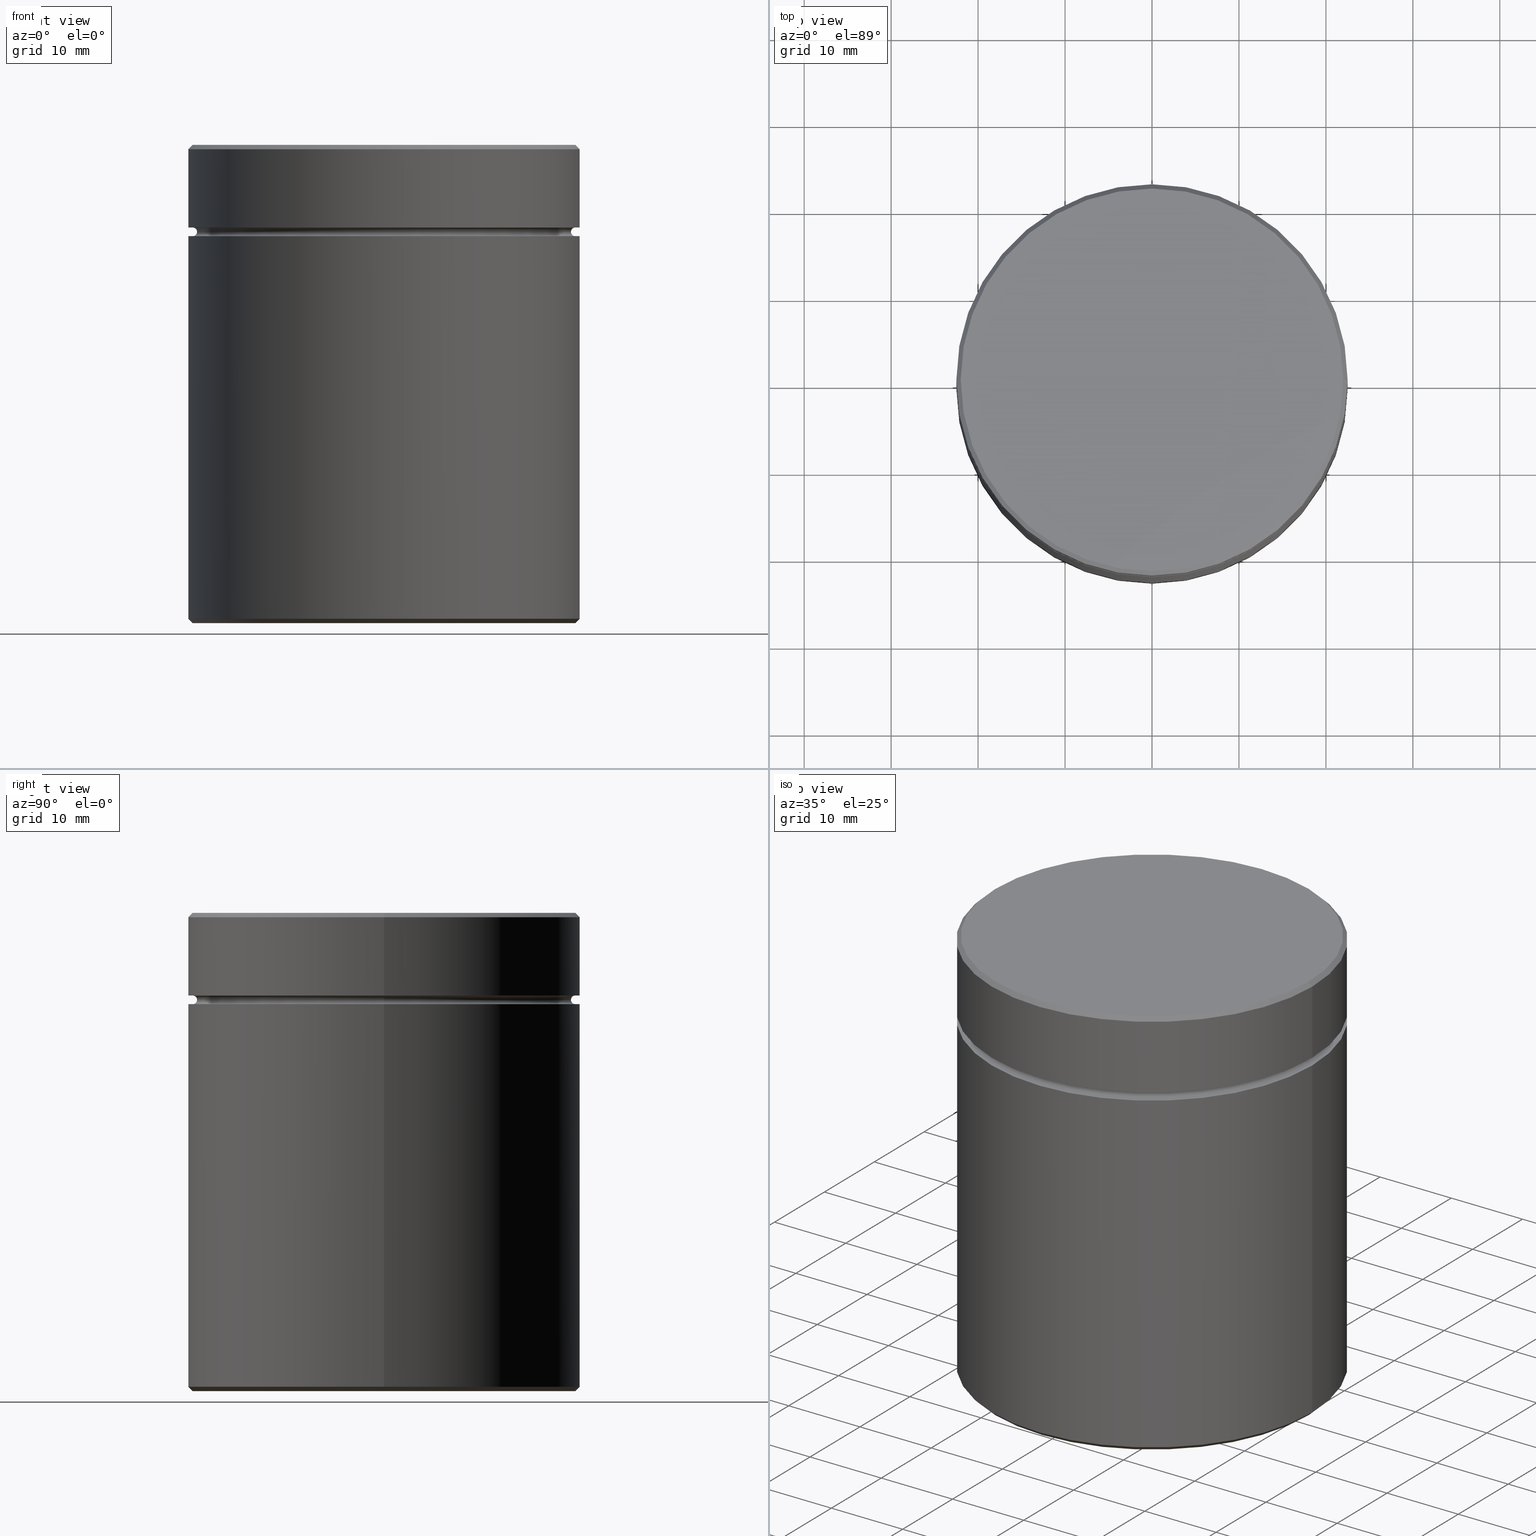
[diagram: canonical four-view strip — front | top / right | iso, engineering-drawing reading convention]
A machine part, canonical four-view strip (front | top / right | iso — engineering-drawing reading convention). The complete STEP part file that produces these views, byte-faithful:
ISO-10303-21;
HEADER;
FILE_DESCRIPTION (( 'STEP AP203' ),
    '1' );
FILE_NAME ('9237.STEP',
    '2024-01-08T12:15:10',
    ( '' ),
    ( '' ),
    'SwSTEP 2.0',
    'SolidWorks 2019',
    '' );
FILE_SCHEMA (( 'CONFIG_CONTROL_DESIGN' ));
ENDSEC;

DATA;
#1 = CARTESIAN_POINT ( 'NONE',  ( 0.000000000000000000, 0.000000000000000000, -18.00000000000000355 ) ) ;
#2 = EDGE_CURVE ( 'NONE', #394, #326, #10, .T. ) ;
#3 = DIRECTION ( 'NONE',  ( 0.000000000000000000, 0.000000000000000000, -1.000000000000000000 ) ) ;
#4 = CARTESIAN_POINT ( 'NONE',  ( 0.000000000000000000, 0.000000000000000000, -10.50000000000000000 ) ) ;
#5 = VECTOR ( 'NONE', #186, 1000.000000000000114 ) ;
#6 = CC_DESIGN_SECURITY_CLASSIFICATION ( #502, ( #63 ) ) ;
#7 = CARTESIAN_POINT ( 'NONE',  ( -22.00000000000000000, 0.000000000000000000, -9.999999999999998224 ) ) ;
#8 = VERTEX_POINT ( 'NONE', #138 ) ;
#9 = FACE_OUTER_BOUND ( 'NONE', #458, .T. ) ;
#10 = CIRCLE ( 'NONE', #49, 22.50000000000000000 ) ;
#11 = EDGE_LOOP ( 'NONE', ( #468, #285 ) ) ;
#12 = CYLINDRICAL_SURFACE ( 'NONE', #272, 22.50000000000000000 ) ;
#13 = EDGE_CURVE ( 'NONE', #95, #340, #178, .T. ) ;
#14 = ORIENTED_EDGE ( 'NONE', *, *, #507, .T. ) ;
#15 = DIRECTION ( 'NONE',  ( 0.000000000000000000, 0.000000000000000000, -1.000000000000000000 ) ) ;
#16 = AXIS2_PLACEMENT_3D ( 'NONE', #459, #404, #548 ) ;
#17 = CIRCLE ( 'NONE', #433, 0.5000000000000004441 ) ;
#18 = DIRECTION ( 'NONE',  ( 0.000000000000000000, -1.000000000000000000, 0.000000000000000000 ) ) ;
#19 = EDGE_CURVE ( 'NONE', #215, #234, #495, .T. ) ;
#20 =( NAMED_UNIT ( * ) SI_UNIT ( $, .STERADIAN. ) SOLID_ANGLE_UNIT ( ) );
#21 = APPROVAL_ROLE ( '' ) ;
#22 = CARTESIAN_POINT ( 'NONE',  ( 0.000000000000000000, 0.000000000000000000, -9.499999999999998224 ) ) ;
#23 = CONICAL_SURFACE ( 'NONE', #53, 22.50000000000000000, 0.7853981633974482790 ) ;
#24 = VERTEX_POINT ( 'NONE', #565 ) ;
#25 = CARTESIAN_POINT ( 'NONE',  ( -21.99999999999998579, 0.000000000000000000, 0.000000000000000000 ) ) ;
#26 = CIRCLE ( 'NONE', #143, 22.50000000000000000 ) ;
#27 = COORDINATED_UNIVERSAL_TIME_OFFSET ( 1, 0, .AHEAD. ) ;
#28 = DIRECTION ( 'NONE',  ( -1.000000000000000000, 0.000000000000000000, 0.000000000000000000 ) ) ;
#29 = ORIENTED_EDGE ( 'NONE', *, *, #19, .T. ) ;
#30 = DATE_TIME_ROLE ( 'classification_date' ) ;
#31 = DIRECTION ( 'NONE',  ( 1.000000000000000000, 0.000000000000000000, 0.000000000000000000 ) ) ;
#32 = EDGE_CURVE ( 'NONE', #24, #326, #135, .T. ) ;
#33 = DIRECTION ( 'NONE',  ( 0.000000000000000000, 0.000000000000000000, -1.000000000000000000 ) ) ;
#34 = DIRECTION ( 'NONE',  ( -0.000000000000000000, -0.000000000000000000, 1.000000000000000000 ) ) ;
#35 = PERSON_AND_ORGANIZATION ( #405, #105 ) ;
#36 = ORIENTED_EDGE ( 'NONE', *, *, #146, .T. ) ;
#37 = CYLINDRICAL_SURFACE ( 'NONE', #541, 22.50000000000000000 ) ;
#38 = CARTESIAN_POINT ( 'NONE',  ( 0.000000000000000000, 0.000000000000000000, 0.000000000000000000 ) ) ;
#39 = CARTESIAN_POINT ( 'NONE',  ( -15.50000000000000000, 0.000000000000000000, -55.00000000000000000 ) ) ;
#40 = EDGE_CURVE ( 'NONE', #394, #8, #288, .T. ) ;
#41 = VERTEX_POINT ( 'NONE', #338 ) ;
#42 = ORIENTED_EDGE ( 'NONE', *, *, #434, .T. ) ;
#43 = AXIS2_PLACEMENT_3D ( 'NONE', #564, #333, #518 ) ;
#44 = CIRCLE ( 'NONE', #445, 15.50000000000000000 ) ;
#45 = LOCAL_TIME ( 13, 15, 10.00000000000000000, #179 ) ;
#46 = ADVANCED_FACE ( 'NONE', ( #557 ), #325, .F. ) ;
#47 = ORIENTED_EDGE ( 'NONE', *, *, #240, .F. ) ;
#48 = DIRECTION ( 'NONE',  ( -1.000000000000000000, 1.224646799147349509E-16, 0.000000000000000000 ) ) ;
#49 = AXIS2_PLACEMENT_3D ( 'NONE', #485, #486, #173 ) ;
#50 = ORIENTED_EDGE ( 'NONE', *, *, #190, .F. ) ;
#51 = DIRECTION ( 'NONE',  ( -0.000000000000000000, -0.000000000000000000, 1.000000000000000000 ) ) ;
#52 = CARTESIAN_POINT ( 'NONE',  ( 22.50000000000000000, 0.000000000000000000, 0.000000000000000000 ) ) ;
#53 = AXIS2_PLACEMENT_3D ( 'NONE', #531, #264, #148 ) ;
#54 = APPROVAL_PERSON_ORGANIZATION ( #503, #249, #277 ) ;
#55 = ORIENTED_EDGE ( 'NONE', *, *, #151, .F. ) ;
#56 = CARTESIAN_POINT ( 'NONE',  ( -22.50000000000000000, 2.755455298081544778E-15, -9.500000000000000000 ) ) ;
#57 = ADVANCED_FACE ( 'NONE', ( #217 ), #37, .T. ) ;
#58 = DIRECTION ( 'NONE',  ( -1.000000000000000000, 0.000000000000000000, -0.000000000000000000 ) ) ;
#59 = DIRECTION ( 'NONE',  ( 0.000000000000000000, 0.000000000000000000, -1.000000000000000000 ) ) ;
#60 = AXIS2_PLACEMENT_3D ( 'NONE', #4, #386, #452 ) ;
#61 = FACE_OUTER_BOUND ( 'NONE', #87, .T. ) ;
#62 = DIRECTION ( 'NONE',  ( 1.000000000000000000, 0.000000000000000000, 0.000000000000000000 ) ) ;
#63 = PRODUCT_DEFINITION_FORMATION_WITH_SPECIFIED_SOURCE ( 'LIBOVOLN�', '', #442, .NOT_KNOWN. ) ;
#64 = DIRECTION ( 'NONE',  ( -1.000000000000000000, 0.000000000000000000, -0.000000000000000000 ) ) ;
#65 = ADVANCED_FACE ( 'NONE', ( #524 ), #300, .T. ) ;
#66 = ORIENTED_EDGE ( 'NONE', *, *, #183, .T. ) ;
#67 = FACE_OUTER_BOUND ( 'NONE', #384, .T. ) ;
#68 = CARTESIAN_POINT ( 'NONE',  ( 21.99999999999998579, 2.694222958124175232E-15, 0.000000000000000000 ) ) ;
#69 = CARTESIAN_POINT ( 'NONE',  ( -22.00000000000000000, 0.000000000000000000, -9.499999999999998224 ) ) ;
#70 = CYLINDRICAL_SURFACE ( 'NONE', #16, 22.50000000000000000 ) ;
#71 = APPLICATION_PROTOCOL_DEFINITION ( 'international standard', 'config_control_design', 1994, #505 ) ;
#72 = EDGE_LOOP ( 'NONE', ( #229, #508, #55, #339 ) ) ;
#73 = SECURITY_CLASSIFICATION_LEVEL ( 'unclassified' ) ;
#74 = AXIS2_PLACEMENT_3D ( 'NONE', #262, #59, #440 ) ;
#75 = DIRECTION ( 'NONE',  ( 1.000000000000000000, 0.000000000000000000, 0.000000000000000000 ) ) ;
#76 = CC_DESIGN_APPROVAL ( #249, ( #291 ) ) ;
#77 = ORIENTED_EDGE ( 'NONE', *, *, #521, .T. ) ;
#78 = EDGE_CURVE ( 'NONE', #234, #467, #97, .T. ) ;
#79 = CC_DESIGN_PERSON_AND_ORGANIZATION_ASSIGNMENT ( #35, #156, ( #63 ) ) ;
#80 = DIRECTION ( 'NONE',  ( -0.000000000000000000, -0.000000000000000000, 1.000000000000000000 ) ) ;
#81 = APPROVAL_STATUS ( 'not_yet_approved' ) ;
#82 = CARTESIAN_POINT ( 'NONE',  ( 0.000000000000000000, 0.000000000000000000, 0.000000000000000000 ) ) ;
#83 = VECTOR ( 'NONE', #283, 1000.000000000000000 ) ;
#84 = ADVANCED_FACE ( 'NONE', ( #210 ), #297, .T. ) ;
#85 = AXIS2_PLACEMENT_3D ( 'NONE', #82, #375, #563 ) ;
#86 = CARTESIAN_POINT ( 'NONE',  ( -22.50000000000000000, 2.755455298081544778E-15, 0.000000000000000000 ) ) ;
#87 = EDGE_LOOP ( 'NONE', ( #298, #216, #501, #187 ) ) ;
#88 = MANIFOLD_SOLID_BREP ( 'Zaoblit1', #420 ) ;
#89 = APPROVAL_ROLE ( '' ) ;
#90 = AXIS2_PLACEMENT_3D ( 'NONE', #22, #121, #28 ) ;
#91 = CARTESIAN_POINT ( 'NONE',  ( 22.00000000000000000, 2.694222958124176809E-15, -9.999999999999998224 ) ) ;
#92 = CARTESIAN_POINT ( 'NONE',  ( 0.000000000000000000, 0.000000000000000000, -10.50000000000000178 ) ) ;
#93 = EDGE_CURVE ( 'NONE', #280, #447, #348, .T. ) ;
#94 = DIRECTION ( 'NONE',  ( 0.000000000000000000, 0.000000000000000000, -1.000000000000000000 ) ) ;
#95 = VERTEX_POINT ( 'NONE', #376 ) ;
#96 = VERTEX_POINT ( 'NONE', #39 ) ;
#97 = CIRCLE ( 'NONE', #407, 0.5000000000000004441 ) ;
#98 = LINE ( 'NONE', #383, #5 ) ;
#99 = ORIENTED_EDGE ( 'NONE', *, *, #40, .F. ) ;
#100 = CARTESIAN_POINT ( 'NONE',  ( 0.000000000000000000, 0.000000000000000000, -18.00000000000000355 ) ) ;
#101 = EDGE_CURVE ( 'NONE', #467, #550, #410, .T. ) ;
#102 = AXIS2_PLACEMENT_3D ( 'NONE', #493, #106, #554 ) ;
#103 = DIRECTION ( 'NONE',  ( 1.000000000000000000, 0.000000000000000000, 0.000000000000000000 ) ) ;
#104 = ORIENTED_EDGE ( 'NONE', *, *, #355, .F. ) ;
#105 = ORGANIZATION ( 'NEUR�EN�', 'NEUR�EN�', '' ) ;
#106 = DIRECTION ( 'NONE',  ( 0.000000000000000000, 0.000000000000000000, -1.000000000000000000 ) ) ;
#107 = CARTESIAN_POINT ( 'NONE',  ( 0.000000000000000000, 0.000000000000000000, -10.50000000000000000 ) ) ;
#108 = CC_DESIGN_PERSON_AND_ORGANIZATION_ASSIGNMENT ( #290, #331, ( #291 ) ) ;
#109 = ORIENTED_EDGE ( 'NONE', *, *, #507, .F. ) ;
#110 = CARTESIAN_POINT ( 'NONE',  ( 21.50000000000000000, 0.000000000000000000, -10.00000000000000178 ) ) ;
#111 = CARTESIAN_POINT ( 'NONE',  ( 0.000000000000000000, 0.000000000000000000, 0.000000000000000000 ) ) ;
#112 = AXIS2_PLACEMENT_3D ( 'NONE', #118, #412, #64 ) ;
#113 = CIRCLE ( 'NONE', #337, 22.50000000000000000 ) ;
#114 = ORIENTED_EDGE ( 'NONE', *, *, #172, .T. ) ;
#115 = LINE ( 'NONE', #25, #399 ) ;
#116 = ORIENTED_EDGE ( 'NONE', *, *, #172, .F. ) ;
#117 = CARTESIAN_POINT ( 'NONE',  ( 0.000000000000000000, 0.000000000000000000, -0.5000000000000212053 ) ) ;
#118 = CARTESIAN_POINT ( 'NONE',  ( 0.000000000000000000, 22.50000000000000000, -55.00000000000000000 ) ) ;
#119 = CALENDAR_DATE ( 2024, 8, 1 ) ;
#120 = APPROVAL_DATE_TIME ( #133, #249 ) ;
#121 = DIRECTION ( 'NONE',  ( -0.000000000000000000, -0.000000000000000000, 1.000000000000000000 ) ) ;
#122 = LINE ( 'NONE', #472, #328 ) ;
#123 = APPROVAL_DATE_TIME ( #198, #537 ) ;
#124 = PERSON_AND_ORGANIZATION_ROLE ( 'design_owner' ) ;
#125 = EDGE_CURVE ( 'NONE', #340, #95, #167, .T. ) ;
#126 = DATE_AND_TIME ( #160, #182 ) ;
#127 = DIRECTION ( 'NONE',  ( -1.000000000000000000, 0.000000000000000000, 0.000000000000000000 ) ) ;
#128 = CIRCLE ( 'NONE', #256, 21.50000000000000000 ) ;
#129 = CARTESIAN_POINT ( 'NONE',  ( 0.000000000000000000, 0.000000000000000000, -18.00000000000000355 ) ) ;
#130 = SHAPE_DEFINITION_REPRESENTATION ( #455, #381 ) ;
#131 = EDGE_LOOP ( 'NONE', ( #248, #320, #435, #196 ) ) ;
#132 = COORDINATED_UNIVERSAL_TIME_OFFSET ( 1, 0, .AHEAD. ) ;
#133 = DATE_AND_TIME ( #323, #562 ) ;
#134 = EDGE_CURVE ( 'NONE', #350, #304, #528, .T. ) ;
#135 = LINE ( 'NONE', #367, #357 ) ;
#136 = CIRCLE ( 'NONE', #243, 0.5000000000000004441 ) ;
#137 = ORIENTED_EDGE ( 'NONE', *, *, #426, .F. ) ;
#138 = CARTESIAN_POINT ( 'NONE',  ( -22.50000000000000000, 2.755455298081544778E-15, -10.50000000000000000 ) ) ;
#139 = EDGE_LOOP ( 'NONE', ( #465, #219 ) ) ;
#140 = CC_DESIGN_PERSON_AND_ORGANIZATION_ASSIGNMENT ( #413, #124, ( #442 ) ) ;
#141 = DIRECTION ( 'NONE',  ( -1.000000000000000000, 0.000000000000000000, 0.000000000000000000 ) ) ;
#142 = AXIS2_PLACEMENT_3D ( 'NONE', #259, #185, #393 ) ;
#143 = AXIS2_PLACEMENT_3D ( 'NONE', #107, #387, #345 ) ;
#144 = DIRECTION ( 'NONE',  ( 1.000000000000000000, 0.000000000000000000, 0.000000000000000000 ) ) ;
#145 = DIRECTION ( 'NONE',  ( 1.000000000000000000, 0.000000000000000000, 0.000000000000000000 ) ) ;
#146 = EDGE_CURVE ( 'NONE', #424, #350, #432, .T. ) ;
#147 = DIRECTION ( 'NONE',  ( -0.000000000000000000, -0.000000000000000000, 1.000000000000000000 ) ) ;
#148 = DIRECTION ( 'NONE',  ( 1.000000000000000000, 0.000000000000000000, 0.000000000000000000 ) ) ;
#149 = AXIS2_PLACEMENT_3D ( 'NONE', #365, #154, #419 ) ;
#150 = DIRECTION ( 'NONE',  ( -0.000000000000000000, -0.000000000000000000, 1.000000000000000000 ) ) ;
#151 = EDGE_CURVE ( 'NONE', #392, #8, #299, .T. ) ;
#152 = DIRECTION ( 'NONE',  ( 1.224646799147353207E-16, 1.000000000000000000, 0.000000000000000000 ) ) ;
#153 = CARTESIAN_POINT ( 'NONE',  ( 22.50000000000000000, 0.000000000000000000, -54.49999999999999289 ) ) ;
#154 = DIRECTION ( 'NONE',  ( 0.000000000000000000, -0.000000000000000000, 1.000000000000000000 ) ) ;
#155 = CC_DESIGN_DATE_AND_TIME_ASSIGNMENT ( #418, #30, ( #502 ) ) ;
#156 = PERSON_AND_ORGANIZATION_ROLE ( 'design_supplier' ) ;
#157 = DIRECTION ( 'NONE',  ( -0.000000000000000000, -0.000000000000000000, 1.000000000000000000 ) ) ;
#158 = FACE_OUTER_BOUND ( 'NONE', #139, .T. ) ;
#159 = ORIENTED_EDGE ( 'NONE', *, *, #204, .T. ) ;
#160 = CALENDAR_DATE ( 2024, 8, 1 ) ;
#161 = CARTESIAN_POINT ( 'NONE',  ( 0.000000000000000000, 0.000000000000000000, -18.00000000000000355 ) ) ;
#162 = EDGE_CURVE ( 'NONE', #424, #192, #391, .T. ) ;
#163 = ORIENTED_EDGE ( 'NONE', *, *, #134, .T. ) ;
#164 = ORIENTED_EDGE ( 'NONE', *, *, #151, .T. ) ;
#165 = UNCERTAINTY_MEASURE_WITH_UNIT (LENGTH_MEASURE( 1.000000000000000082E-05 ), #511, 'distance_accuracy_value', 'NONE');
#166 = CARTESIAN_POINT ( 'NONE',  ( 0.000000000000000000, 0.000000000000000000, -10.00000000000000178 ) ) ;
#167 = CIRCLE ( 'NONE', #335, 21.99999999999998579 ) ;
#168 = DIRECTION ( 'NONE',  ( -1.000000000000000000, 0.000000000000000000, 0.000000000000000000 ) ) ;
#169 = AXIS2_PLACEMENT_3D ( 'NONE', #448, #51, #103 ) ;
#170 = CIRCLE ( 'NONE', #428, 22.50000000000000000 ) ;
#171 = MECHANICAL_CONTEXT ( 'NONE', #505, 'mechanical' ) ;
#172 = EDGE_CURVE ( 'NONE', #215, #550, #456, .T. ) ;
#173 = DIRECTION ( 'NONE',  ( -1.000000000000000000, 0.000000000000000000, 0.000000000000000000 ) ) ;
#174 = CARTESIAN_POINT ( 'NONE',  ( 0.000000000000000000, 0.000000000000000000, -18.00000000000000355 ) ) ;
#175 = ADVANCED_FACE ( 'NONE', ( #9 ), #180, .T. ) ;
#176 = ORIENTED_EDGE ( 'NONE', *, *, #125, .F. ) ;
#177 = ORIENTED_EDGE ( 'NONE', *, *, #183, .F. ) ;
#178 = CIRCLE ( 'NONE', #228, 21.99999999999998579 ) ;
#179 = COORDINATED_UNIVERSAL_TIME_OFFSET ( 1, 0, .AHEAD. ) ;
#180 = PLANE ( 'NONE',  #525 ) ;
#181 = CIRCLE ( 'NONE', #561, 22.00000000000000000 ) ;
#182 = LOCAL_TIME ( 13, 15, 10.00000000000000000, #132 ) ;
#183 = EDGE_CURVE ( 'NONE', #347, #394, #98, .T. ) ;
#184 = DIRECTION ( 'NONE',  ( 0.000000000000000000, 0.000000000000000000, -1.000000000000000000 ) ) ;
#185 = DIRECTION ( 'NONE',  ( -0.000000000000000000, -0.000000000000000000, 1.000000000000000000 ) ) ;
#186 = DIRECTION ( 'NONE',  ( -0.7071067811865474617, 8.659560562354932858E-17, 0.7071067811865474617 ) ) ;
#187 = ORIENTED_EDGE ( 'NONE', *, *, #134, .F. ) ;
#188 = CONICAL_SURFACE ( 'NONE', #519, 22.50000000000000000, 0.7853981633974482790 ) ;
#189 = CIRCLE ( 'NONE', #460, 22.50000000000000000 ) ;
#190 = EDGE_CURVE ( 'NONE', #24, #347, #225, .T. ) ;
#191 = DIRECTION ( 'NONE',  ( 1.000000000000000000, 0.000000000000000000, 0.000000000000000000 ) ) ;
#192 = VERTEX_POINT ( 'NONE', #263 ) ;
#193 = DIRECTION ( 'NONE',  ( 0.000000000000000000, 0.000000000000000000, -1.000000000000000000 ) ) ;
#194 = ADVANCED_FACE ( 'NONE', ( #388 ), #244, .F. ) ;
#195 =( GEOMETRIC_REPRESENTATION_CONTEXT ( 3 ) GLOBAL_UNCERTAINTY_ASSIGNED_CONTEXT ( ( #165 ) ) GLOBAL_UNIT_ASSIGNED_CONTEXT ( ( #511, #369, #20 ) ) REPRESENTATION_CONTEXT ( 'NONE', 'WORKASPACE' ) );
#196 = ORIENTED_EDGE ( 'NONE', *, *, #566, .F. ) ;
#197 = DIRECTION ( 'NONE',  ( 0.000000000000000000, 0.000000000000000000, -1.000000000000000000 ) ) ;
#198 = DATE_AND_TIME ( #119, #45 ) ;
#199 = EDGE_LOOP ( 'NONE', ( #164, #360 ) ) ;
#200 = CALENDAR_DATE ( 2024, 8, 1 ) ;
#201 = DIRECTION ( 'NONE',  ( 1.000000000000000000, 0.000000000000000000, 0.000000000000000000 ) ) ;
#202 = ORIENTED_EDGE ( 'NONE', *, *, #526, .F. ) ;
#203 = CARTESIAN_POINT ( 'NONE',  ( 0.000000000000000000, 0.000000000000000000, -54.49999999999999289 ) ) ;
#204 = EDGE_CURVE ( 'NONE', #447, #280, #44, .T. ) ;
#205 = ORIENTED_EDGE ( 'NONE', *, *, #416, .F. ) ;
#206 = AXIS2_PLACEMENT_3D ( 'NONE', #449, #441, #141 ) ;
#207 = CONICAL_SURFACE ( 'NONE', #474, 21.99999999999998579, 0.7853981633974415066 ) ;
#208 = DIRECTION ( 'NONE',  ( 1.000000000000000000, 0.000000000000000000, 0.000000000000000000 ) ) ;
#209 = VECTOR ( 'NONE', #253, 1000.000000000000000 ) ;
#210 = FACE_OUTER_BOUND ( 'NONE', #427, .T. ) ;
#211 = CARTESIAN_POINT ( 'NONE',  ( 21.99999999999998579, 2.724839128102860202E-15, 0.000000000000000000 ) ) ;
#212 = DIRECTION ( 'NONE',  ( -1.000000000000000000, -1.224646799147349509E-16, 0.000000000000000000 ) ) ;
#213 = ADVANCED_FACE ( 'NONE', ( #529 ), #23, .T. ) ;
#214 = CC_DESIGN_APPROVAL ( #484, ( #63 ) ) ;
#215 = VERTEX_POINT ( 'NONE', #342 ) ;
#216 = ORIENTED_EDGE ( 'NONE', *, *, #162, .T. ) ;
#217 = FACE_OUTER_BOUND ( 'NONE', #555, .T. ) ;
#218 = DIRECTION ( 'NONE',  ( -0.000000000000000000, -1.000000000000000000, -0.000000000000000000 ) ) ;
#219 = ORIENTED_EDGE ( 'NONE', *, *, #307, .T. ) ;
#220 = DIRECTION ( 'NONE',  ( 0.000000000000000000, 0.000000000000000000, -1.000000000000000000 ) ) ;
#221 = LINE ( 'NONE', #223, #489 ) ;
#222 = ADVANCED_FACE ( 'NONE', ( #523, #535 ), #306, .T. ) ;
#223 = CARTESIAN_POINT ( 'NONE',  ( 15.50000000000000000, 1.898202538678397557E-15, -18.00000000000000355 ) ) ;
#224 = CARTESIAN_POINT ( 'NONE',  ( -22.50000000000000000, 2.755455298081544778E-15, 0.000000000000000000 ) ) ;
#225 = CIRCLE ( 'NONE', #206, 21.99999999999999289 ) ;
#226 = CARTESIAN_POINT ( 'NONE',  ( 0.000000000000000000, 0.000000000000000000, -10.50000000000000178 ) ) ;
#227 = ORIENTED_EDGE ( 'NONE', *, *, #101, .F. ) ;
#228 = AXIS2_PLACEMENT_3D ( 'NONE', #38, #80, #201 ) ;
#229 = ORIENTED_EDGE ( 'NONE', *, *, #487, .T. ) ;
#230 = ADVANCED_FACE ( 'NONE', ( #61 ), #70, .T. ) ;
#231 = DIRECTION ( 'NONE',  ( -0.000000000000000000, -0.000000000000000000, 1.000000000000000000 ) ) ;
#232 = AXIS2_PLACEMENT_3D ( 'NONE', #7, #218, #305 ) ;
#233 = DIRECTION ( 'NONE',  ( -0.000000000000000000, -0.000000000000000000, 1.000000000000000000 ) ) ;
#234 = VERTEX_POINT ( 'NONE', #110 ) ;
#235 = ORIENTED_EDGE ( 'NONE', *, *, #307, .F. ) ;
#236 = DIRECTION ( 'NONE',  ( 0.000000000000000000, 0.000000000000000000, -1.000000000000000000 ) ) ;
#237 = EDGE_LOOP ( 'NONE', ( #477, #36, #163, #553 ) ) ;
#238 = CARTESIAN_POINT ( 'NONE',  ( 15.50000000000000000, 1.898202538678397557E-15, -18.00000000000000355 ) ) ;
#239 = CARTESIAN_POINT ( 'NONE',  ( 0.000000000000000000, 0.000000000000000000, -0.5000000000000212053 ) ) ;
#240 = EDGE_CURVE ( 'NONE', #234, #444, #136, .T. ) ;
#241 = FACE_BOUND ( 'NONE', #463, .T. ) ;
#242 = FACE_BOUND ( 'NONE', #11, .T. ) ;
#243 = AXIS2_PLACEMENT_3D ( 'NONE', #506, #18, #197 ) ;
#244 = TOROIDAL_SURFACE ( 'NONE', #316, 22.00000000000000000, 0.5000000000000000000 ) ;
#245 = APPROVAL_PERSON_ORGANIZATION ( #551, #484, #21 ) ;
#246 = CARTESIAN_POINT ( 'NONE',  ( 0.000000000000000000, 0.000000000000000000, -55.00000000000000000 ) ) ;
#247 = CARTESIAN_POINT ( 'NONE',  ( -22.00000000000000000, 2.694222958124176809E-15, -10.50000000000000178 ) ) ;
#248 = ORIENTED_EDGE ( 'NONE', *, *, #260, .F. ) ;
#249 = APPROVAL ( #473, 'NEUR�EN�' ) ;
#250 = APPROVAL_DATE_TIME ( #126, #484 ) ;
#251 = LOCAL_TIME ( 13, 15, 10.00000000000000000, #27 ) ;
#252 = EDGE_LOOP ( 'NONE', ( #417, #373, #14, #560 ) ) ;
#253 = DIRECTION ( 'NONE',  ( -0.000000000000000000, -0.000000000000000000, 1.000000000000000000 ) ) ;
#254 = EDGE_CURVE ( 'NONE', #95, #192, #115, .T. ) ;
#255 = CIRCLE ( 'NONE', #302, 21.99999999999999289 ) ;
#256 = AXIS2_PLACEMENT_3D ( 'NONE', #504, #233, #559 ) ;
#257 = ORIENTED_EDGE ( 'NONE', *, *, #2, .T. ) ;
#258 = CARTESIAN_POINT ( 'NONE',  ( 0.000000000000000000, 0.000000000000000000, 0.000000000000000000 ) ) ;
#259 = CARTESIAN_POINT ( 'NONE',  ( 0.000000000000000000, 0.000000000000000000, -10.00000000000000178 ) ) ;
#260 = EDGE_CURVE ( 'NONE', #340, #304, #358, .T. ) ;
#261 = DIRECTION ( 'NONE',  ( -0.000000000000000000, -0.000000000000000000, 1.000000000000000000 ) ) ;
#262 = CARTESIAN_POINT ( 'NONE',  ( 0.000000000000000000, 0.000000000000000000, -9.999999999999998224 ) ) ;
#263 = CARTESIAN_POINT ( 'NONE',  ( -22.50000000000000000, 2.755455298081544778E-15, -0.5000000000000212053 ) ) ;
#264 = DIRECTION ( 'NONE',  ( -0.000000000000000000, -0.000000000000000000, 1.000000000000000000 ) ) ;
#265 = ORIENTED_EDGE ( 'NONE', *, *, #314, .T. ) ;
#266 = CARTESIAN_POINT ( 'NONE',  ( -22.00000000000000000, 2.694222958124176809E-15, -10.00000000000000178 ) ) ;
#267 = DIRECTION ( 'NONE',  ( 1.000000000000000000, 0.000000000000000000, 0.000000000000000000 ) ) ;
#268 = ADVANCED_FACE ( 'NONE', ( #318 ), #188, .T. ) ;
#269 = CARTESIAN_POINT ( 'NONE',  ( 0.000000000000000000, 0.000000000000000000, -9.500000000000000000 ) ) ;
#270 = DIRECTION ( 'NONE',  ( 1.000000000000000000, 0.000000000000000000, 0.000000000000000000 ) ) ;
#271 = EDGE_LOOP ( 'NONE', ( #205, #461, #343, #137 ) ) ;
#272 = AXIS2_PLACEMENT_3D ( 'NONE', #353, #147, #492 ) ;
#273 = DIRECTION ( 'NONE',  ( -0.000000000000000000, -0.000000000000000000, -1.000000000000000000 ) ) ;
#274 = DIRECTION ( 'NONE',  ( 0.000000000000000000, 0.000000000000000000, -1.000000000000000000 ) ) ;
#275 = EDGE_CURVE ( 'NONE', #96, #41, #547, .T. ) ;
#276 = EDGE_LOOP ( 'NONE', ( #235, #66, #398, #481 ) ) ;
#277 = APPROVAL_ROLE ( '' ) ;
#278 = CARTESIAN_POINT ( 'NONE',  ( 0.000000000000000000, 0.000000000000000000, -10.00000000000000178 ) ) ;
#279 = DIRECTION ( 'NONE',  ( -0.000000000000000000, -0.000000000000000000, -1.000000000000000000 ) ) ;
#280 = VERTEX_POINT ( 'NONE', #238 ) ;
#281 = PERSON_AND_ORGANIZATION_ROLE ( 'classification_officer' ) ;
#282 = AXIS2_PLACEMENT_3D ( 'NONE', #174, #3, #483 ) ;
#283 = DIRECTION ( 'NONE',  ( 0.7071067811865426878, 8.659560562354874926E-17, -0.7071067811865524577 ) ) ;
#284 = APPLICATION_PROTOCOL_DEFINITION ( 'international standard', 'config_control_design', 1994, #530 ) ;
#285 = ORIENTED_EDGE ( 'NONE', *, *, #426, .T. ) ;
#286 = DIRECTION ( 'NONE',  ( -0.000000000000000000, -0.000000000000000000, 1.000000000000000000 ) ) ;
#287 = APPROVAL_PERSON_ORGANIZATION ( #478, #537, #89 ) ;
#288 = LINE ( 'NONE', #86, #209 ) ;
#289 = ORIENTED_EDGE ( 'NONE', *, *, #416, .T. ) ;
#290 = PERSON_AND_ORGANIZATION ( #405, #105 ) ;
#291 = PRODUCT_DEFINITION ( 'NEZN�M�', '', #63, #471 ) ;
#292 = DIRECTION ( 'NONE',  ( -1.224646799147353207E-16, 1.000000000000000000, 0.000000000000000000 ) ) ;
#293 = TOROIDAL_SURFACE ( 'NONE', #74, 22.00000000000000000, 0.5000000000000000000 ) ;
#294 = DIRECTION ( 'NONE',  ( 0.7071067811865474617, 0.000000000000000000, 0.7071067811865474617 ) ) ;
#295 = ADVANCED_FACE ( 'NONE', ( #158, #241 ), #408, .T. ) ;
#296 = ORIENTED_EDGE ( 'NONE', *, *, #125, .T. ) ;
#297 = CONICAL_SURFACE ( 'NONE', #366, 21.99999999999998579, 0.7853981633974415066 ) ;
#298 = ORIENTED_EDGE ( 'NONE', *, *, #368, .T. ) ;
#299 = CIRCLE ( 'NONE', #60, 22.50000000000000000 ) ;
#300 = PLANE ( 'NONE',  #439 ) ;
#301 = ADVANCED_FACE ( 'NONE', ( #354 ), #539, .F. ) ;
#302 = AXIS2_PLACEMENT_3D ( 'NONE', #510, #193, #400 ) ;
#303 = AXIS2_PLACEMENT_3D ( 'NONE', #278, #157, #191 ) ;
#304 = VERTEX_POINT ( 'NONE', #315 ) ;
#305 = DIRECTION ( 'NONE',  ( 0.000000000000000000, 0.000000000000000000, -1.000000000000000000 ) ) ;
#306 = PLANE ( 'NONE',  #102 ) ;
#307 = EDGE_CURVE ( 'NONE', #347, #24, #255, .T. ) ;
#308 = EDGE_LOOP ( 'NONE', ( #42, #517 ) ) ;
#309 = CC_DESIGN_APPROVAL ( #537, ( #502 ) ) ;
#310 = EDGE_LOOP ( 'NONE', ( #389, #296 ) ) ;
#311 = CARTESIAN_POINT ( 'NONE',  ( -21.99999999999999289, 2.724839128102860202E-15, -55.00000000000000000 ) ) ;
#312 = FACE_OUTER_BOUND ( 'NONE', #429, .T. ) ;
#313 = CARTESIAN_POINT ( 'NONE',  ( -15.50000000000000000, 0.000000000000000000, -18.00000000000000355 ) ) ;
#314 = EDGE_CURVE ( 'NONE', #326, #392, #122, .T. ) ;
#315 = CARTESIAN_POINT ( 'NONE',  ( 22.50000000000000000, 0.000000000000000000, -0.5000000000000212053 ) ) ;
#316 = AXIS2_PLACEMENT_3D ( 'NONE', #349, #94, #352 ) ;
#317 = PERSON_AND_ORGANIZATION ( #405, #105 ) ;
#318 = FACE_OUTER_BOUND ( 'NONE', #276, .T. ) ;
#319 = CARTESIAN_POINT ( 'NONE',  ( 22.00000000000000000, 0.000000000000000000, -10.50000000000000178 ) ) ;
#320 = ORIENTED_EDGE ( 'NONE', *, *, #13, .F. ) ;
#321 = DIRECTION ( 'NONE',  ( -1.000000000000000000, 0.000000000000000000, 0.000000000000000000 ) ) ;
#322 = ORIENTED_EDGE ( 'NONE', *, *, #536, .T. ) ;
#323 = CALENDAR_DATE ( 2024, 8, 1 ) ;
#324 = CARTESIAN_POINT ( 'NONE',  ( 22.00000000000000000, 2.694222958124176809E-15, -9.499999999999998224 ) ) ;
#325 = CYLINDRICAL_SURFACE ( 'NONE', #480, 15.50000000000000000 ) ;
#326 = VERTEX_POINT ( 'NONE', #153 ) ;
#327 = DATE_AND_TIME ( #516, #446 ) ;
#328 = VECTOR ( 'NONE', #231, 1000.000000000000000 ) ;
#329 = PRODUCT_RELATED_PRODUCT_CATEGORY ( 'detail', '', ( #442 ) ) ;
#330 = CIRCLE ( 'NONE', #90, 22.00000000000000000 ) ;
#331 = PERSON_AND_ORGANIZATION_ROLE ( 'creator' ) ;
#332 = AXIS2_PLACEMENT_3D ( 'NONE', #166, #34, #31 ) ;
#333 = DIRECTION ( 'NONE',  ( -0.000000000000000000, -0.000000000000000000, 1.000000000000000000 ) ) ;
#334 = ADVANCED_FACE ( 'NONE', ( #312 ), #293, .F. ) ;
#335 = AXIS2_PLACEMENT_3D ( 'NONE', #336, #261, #267 ) ;
#336 = CARTESIAN_POINT ( 'NONE',  ( 0.000000000000000000, 0.000000000000000000, 0.000000000000000000 ) ) ;
#337 = AXIS2_PLACEMENT_3D ( 'NONE', #117, #454, #62 ) ;
#338 = CARTESIAN_POINT ( 'NONE',  ( 15.50000000000000000, 1.898202538678397557E-15, -55.00000000000000000 ) ) ;
#339 = ORIENTED_EDGE ( 'NONE', *, *, #314, .F. ) ;
#340 = VERTEX_POINT ( 'NONE', #211 ) ;
#341 = CARTESIAN_POINT ( 'NONE',  ( 0.000000000000000000, 0.000000000000000000, 0.000000000000000000 ) ) ;
#342 = CARTESIAN_POINT ( 'NONE',  ( -21.50000000000000000, 2.663606788145493022E-15, -10.00000000000000178 ) ) ;
#343 = ORIENTED_EDGE ( 'NONE', *, *, #240, .T. ) ;
#344 = DIRECTION ( 'NONE',  ( -0.000000000000000000, -0.000000000000000000, 1.000000000000000000 ) ) ;
#345 = DIRECTION ( 'NONE',  ( 1.000000000000000000, 0.000000000000000000, 0.000000000000000000 ) ) ;
#346 = DIRECTION ( 'NONE',  ( -0.000000000000000000, -0.000000000000000000, 1.000000000000000000 ) ) ;
#347 = VERTEX_POINT ( 'NONE', #311 ) ;
#348 = CIRCLE ( 'NONE', #282, 15.50000000000000000 ) ;
#349 = CARTESIAN_POINT ( 'NONE',  ( 0.000000000000000000, 0.000000000000000000, -9.999999999999998224 ) ) ;
#350 = VERTEX_POINT ( 'NONE', #538 ) ;
#351 = AXIS2_PLACEMENT_3D ( 'NONE', #161, #279, #321 ) ;
#352 = DIRECTION ( 'NONE',  ( -1.000000000000000000, 0.000000000000000000, 0.000000000000000000 ) ) ;
#353 = CARTESIAN_POINT ( 'NONE',  ( 0.000000000000000000, 0.000000000000000000, 0.000000000000000000 ) ) ;
#354 = FACE_OUTER_BOUND ( 'NONE', #469, .T. ) ;
#355 = EDGE_CURVE ( 'NONE', #444, #543, #181, .T. ) ;
#356 = LINE ( 'NONE', #313, #402 ) ;
#357 = VECTOR ( 'NONE', #294, 1000.000000000000114 ) ;
#358 = LINE ( 'NONE', #68, #83 ) ;
#359 = CC_DESIGN_PERSON_AND_ORGANIZATION_ASSIGNMENT ( #317, #281, ( #502 ) ) ;
#360 = ORIENTED_EDGE ( 'NONE', *, *, #390, .T. ) ;
#361 = DATE_TIME_ROLE ( 'creation_date' ) ;
#362 = FACE_OUTER_BOUND ( 'NONE', #131, .T. ) ;
#363 = ORIENTED_EDGE ( 'NONE', *, *, #275, .F. ) ;
#364 = DIRECTION ( 'NONE',  ( -0.000000000000000000, -0.000000000000000000, 1.000000000000000000 ) ) ;
#365 = CARTESIAN_POINT ( 'NONE',  ( 0.000000000000000000, 21.50000000000000000, -10.50000000000000178 ) ) ;
#366 = AXIS2_PLACEMENT_3D ( 'NONE', #258, #220, #436 ) ;
#367 = CARTESIAN_POINT ( 'NONE',  ( 22.50000000000000000, 0.000000000000000000, -54.49999999999999289 ) ) ;
#368 = EDGE_CURVE ( 'NONE', #350, #424, #500, .T. ) ;
#369 =( NAMED_UNIT ( * ) PLANE_ANGLE_UNIT ( ) SI_UNIT ( $, .RADIAN. ) );
#370 = CARTESIAN_POINT ( 'NONE',  ( 0.000000000000000000, 0.000000000000000000, -55.00000000000000000 ) ) ;
#371 = VECTOR ( 'NONE', #150, 1000.000000000000000 ) ;
#372 = DIRECTION ( 'NONE',  ( 1.000000000000000000, 0.000000000000000000, 0.000000000000000000 ) ) ;
#373 = ORIENTED_EDGE ( 'NONE', *, *, #377, .T. ) ;
#374 = TOROIDAL_SURFACE ( 'NONE', #142, 22.00000000000000000, 0.5000000000000000000 ) ;
#375 = DIRECTION ( 'NONE',  ( 0.000000000000000000, 0.000000000000000000, 1.000000000000000000 ) ) ;
#376 = CARTESIAN_POINT ( 'NONE',  ( -21.99999999999998579, 0.000000000000000000, 0.000000000000000000 ) ) ;
#377 = EDGE_CURVE ( 'NONE', #280, #41, #221, .T. ) ;
#378 = ORIENTED_EDGE ( 'NONE', *, *, #78, .F. ) ;
#379 = CARTESIAN_POINT ( 'NONE',  ( 0.000000000000000000, 0.000000000000000000, 0.000000000000000000 ) ) ;
#380 = TOROIDAL_SURFACE ( 'NONE', #303, 22.00000000000000000, 0.5000000000000000000 ) ;
#381 = ADVANCED_BREP_SHAPE_REPRESENTATION ( '9237', ( #88, #85 ), #195 ) ;
#382 = ADVANCED_FACE ( 'NONE', ( #532 ), #374, .F. ) ;
#383 = CARTESIAN_POINT ( 'NONE',  ( -22.50000000000000000, 2.755455298081544778E-15, -54.49999999999999289 ) ) ;
#384 = EDGE_LOOP ( 'NONE', ( #438, #289, #104, #47 ) ) ;
#385 = CARTESIAN_POINT ( 'NONE',  ( -22.50000000000000000, 2.755455298081544778E-15, -54.49999999999999289 ) ) ;
#386 = DIRECTION ( 'NONE',  ( -0.000000000000000000, -0.000000000000000000, 1.000000000000000000 ) ) ;
#387 = DIRECTION ( 'NONE',  ( -0.000000000000000000, -0.000000000000000000, 1.000000000000000000 ) ) ;
#388 = FACE_OUTER_BOUND ( 'NONE', #512, .T. ) ;
#389 = ORIENTED_EDGE ( 'NONE', *, *, #13, .T. ) ;
#390 = EDGE_CURVE ( 'NONE', #8, #392, #26, .T. ) ;
#391 = LINE ( 'NONE', #224, #371 ) ;
#392 = VERTEX_POINT ( 'NONE', #450 ) ;
#393 = DIRECTION ( 'NONE',  ( 1.000000000000000000, 0.000000000000000000, 0.000000000000000000 ) ) ;
#394 = VERTEX_POINT ( 'NONE', #385 ) ;
#395 = ORIENTED_EDGE ( 'NONE', *, *, #78, .T. ) ;
#396 = DIRECTION ( 'NONE',  ( -1.000000000000000000, 0.000000000000000000, 0.000000000000000000 ) ) ;
#397 = FACE_OUTER_BOUND ( 'NONE', #237, .T. ) ;
#398 = ORIENTED_EDGE ( 'NONE', *, *, #487, .F. ) ;
#399 = VECTOR ( 'NONE', #464, 1000.000000000000000 ) ;
#400 = DIRECTION ( 'NONE',  ( -1.000000000000000000, 0.000000000000000000, 0.000000000000000000 ) ) ;
#401 = ADVANCED_FACE ( 'NONE', ( #397 ), #12, .T. ) ;
#402 = VECTOR ( 'NONE', #273, 1000.000000000000000 ) ;
#403 = ORIENTED_EDGE ( 'NONE', *, *, #434, .F. ) ;
#404 = DIRECTION ( 'NONE',  ( -0.000000000000000000, -0.000000000000000000, 1.000000000000000000 ) ) ;
#405 = PERSON ( 'NEUR�EN�', 'NEUR�EN�', 'NEUR�EN�', ('NEUR�EN�'), ('NEUR�EN�'), ('NEUR�EN�') ) ;
#406 = ORIENTED_EDGE ( 'NONE', *, *, #254, .F. ) ;
#407 = AXIS2_PLACEMENT_3D ( 'NONE', #91, #292, #212 ) ;
#408 = PLANE ( 'NONE',  #112 ) ;
#409 = ORIENTED_EDGE ( 'NONE', *, *, #390, .F. ) ;
#410 = CIRCLE ( 'NONE', #43, 22.00000000000000000 ) ;
#411 = ORIENTED_EDGE ( 'NONE', *, *, #2, .F. ) ;
#412 = DIRECTION ( 'NONE',  ( 0.000000000000000000, 0.000000000000000000, -1.000000000000000000 ) ) ;
#413 = PERSON_AND_ORGANIZATION ( #405, #105 ) ;
#414 = AXIS2_PLACEMENT_3D ( 'NONE', #246, #274, #544 ) ;
#415 = CYLINDRICAL_SURFACE ( 'NONE', #534, 22.50000000000000000 ) ;
#416 = EDGE_CURVE ( 'NONE', #215, #543, #17, .T. ) ;
#417 = ORIENTED_EDGE ( 'NONE', *, *, #93, .F. ) ;
#418 = DATE_AND_TIME ( #200, #251 ) ;
#419 = DIRECTION ( 'NONE',  ( 1.000000000000000000, 0.000000000000000000, 0.000000000000000000 ) ) ;
#420 = CLOSED_SHELL ( 'NONE', ( #334, #490, #268, #84, #46, #515, #230, #295, #65, #401, #222, #470, #57, #301, #175, #496, #213, #382, #194 ) ) ;
#421 = DIRECTION ( 'NONE',  ( -0.000000000000000000, -0.000000000000000000, -1.000000000000000000 ) ) ;
#422 = COORDINATED_UNIVERSAL_TIME_OFFSET ( 1, 0, .AHEAD. ) ;
#423 = ORIENTED_EDGE ( 'NONE', *, *, #93, .T. ) ;
#424 = VERTEX_POINT ( 'NONE', #56 ) ;
#425 = ORIENTED_EDGE ( 'NONE', *, *, #204, .F. ) ;
#426 = EDGE_CURVE ( 'NONE', #543, #444, #520, .T. ) ;
#427 = EDGE_LOOP ( 'NONE', ( #176, #567, #202, #406 ) ) ;
#428 = AXIS2_PLACEMENT_3D ( 'NONE', #239, #33, #372 ) ;
#429 = EDGE_LOOP ( 'NONE', ( #29, #395, #403, #116 ) ) ;
#430 = DIRECTION ( 'NONE',  ( 1.000000000000000000, 0.000000000000000000, 0.000000000000000000 ) ) ;
#431 = CC_DESIGN_PERSON_AND_ORGANIZATION_ASSIGNMENT ( #475, #545, ( #63 ) ) ;
#432 = CIRCLE ( 'NONE', #488, 22.50000000000000000 ) ;
#433 = AXIS2_PLACEMENT_3D ( 'NONE', #266, #152, #48 ) ;
#434 = EDGE_CURVE ( 'NONE', #550, #467, #330, .T. ) ;
#435 = ORIENTED_EDGE ( 'NONE', *, *, #254, .T. ) ;
#436 = DIRECTION ( 'NONE',  ( -1.000000000000000000, 0.000000000000000000, 0.000000000000000000 ) ) ;
#437 = DIRECTION ( 'NONE',  ( 0.000000000000000000, 0.000000000000000000, -1.000000000000000000 ) ) ;
#438 = ORIENTED_EDGE ( 'NONE', *, *, #19, .F. ) ;
#439 = AXIS2_PLACEMENT_3D ( 'NONE', #379, #568, #208 ) ;
#440 = DIRECTION ( 'NONE',  ( -1.000000000000000000, 0.000000000000000000, 0.000000000000000000 ) ) ;
#441 = DIRECTION ( 'NONE',  ( 0.000000000000000000, 0.000000000000000000, -1.000000000000000000 ) ) ;
#442 = PRODUCT ( '9237', '9237', '', ( #171 ) ) ;
#443 = DIRECTION ( 'NONE',  ( -0.000000000000000000, -0.000000000000000000, -1.000000000000000000 ) ) ;
#444 = VERTEX_POINT ( 'NONE', #319 ) ;
#445 = AXIS2_PLACEMENT_3D ( 'NONE', #1, #184, #396 ) ;
#446 = LOCAL_TIME ( 13, 15, 10.00000000000000000, #466 ) ;
#447 = VERTEX_POINT ( 'NONE', #498 ) ;
#448 = CARTESIAN_POINT ( 'NONE',  ( 0.000000000000000000, 0.000000000000000000, -9.500000000000000000 ) ) ;
#449 = CARTESIAN_POINT ( 'NONE',  ( 0.000000000000000000, 0.000000000000000000, -55.00000000000000000 ) ) ;
#450 = CARTESIAN_POINT ( 'NONE',  ( 22.50000000000000000, 0.000000000000000000, -10.50000000000000000 ) ) ;
#451 = ORIENTED_EDGE ( 'NONE', *, *, #146, .F. ) ;
#452 = DIRECTION ( 'NONE',  ( 1.000000000000000000, 0.000000000000000000, 0.000000000000000000 ) ) ;
#453 = VECTOR ( 'NONE', #344, 1000.000000000000000 ) ;
#454 = DIRECTION ( 'NONE',  ( 0.000000000000000000, 0.000000000000000000, -1.000000000000000000 ) ) ;
#455 = PRODUCT_DEFINITION_SHAPE ( 'NONE', 'NONE',  #291 ) ;
#456 = CIRCLE ( 'NONE', #232, 0.5000000000000004441 ) ;
#457 = ORIENTED_EDGE ( 'NONE', *, *, #275, .T. ) ;
#458 = EDGE_LOOP ( 'NONE', ( #159, #423 ) ) ;
#459 = CARTESIAN_POINT ( 'NONE',  ( 0.000000000000000000, 0.000000000000000000, 0.000000000000000000 ) ) ;
#460 = AXIS2_PLACEMENT_3D ( 'NONE', #203, #494, #127 ) ;
#461 = ORIENTED_EDGE ( 'NONE', *, *, #521, .F. ) ;
#462 = FACE_OUTER_BOUND ( 'NONE', #199, .T. ) ;
#463 = EDGE_LOOP ( 'NONE', ( #363, #109 ) ) ;
#464 = DIRECTION ( 'NONE',  ( -0.7071067811865426878, 0.000000000000000000, -0.7071067811865524577 ) ) ;
#465 = ORIENTED_EDGE ( 'NONE', *, *, #190, .T. ) ;
#466 = COORDINATED_UNIVERSAL_TIME_OFFSET ( 1, 0, .AHEAD. ) ;
#467 = VERTEX_POINT ( 'NONE', #324 ) ;
#468 = ORIENTED_EDGE ( 'NONE', *, *, #355, .T. ) ;
#469 = EDGE_LOOP ( 'NONE', ( #514, #425, #322, #457 ) ) ;
#470 = ADVANCED_FACE ( 'NONE', ( #242, #462 ), #476, .T. ) ;
#471 = DESIGN_CONTEXT ( 'detailed design', #530, 'design' ) ;
#472 = CARTESIAN_POINT ( 'NONE',  ( 22.50000000000000000, 0.000000000000000000, 0.000000000000000000 ) ) ;
#473 = APPROVAL_STATUS ( 'not_yet_approved' ) ;
#474 = AXIS2_PLACEMENT_3D ( 'NONE', #111, #540, #556 ) ;
#475 = PERSON_AND_ORGANIZATION ( #405, #105 ) ;
#476 = PLANE ( 'NONE',  #149 ) ;
#477 = ORIENTED_EDGE ( 'NONE', *, *, #162, .F. ) ;
#478 = PERSON_AND_ORGANIZATION ( #405, #105 ) ;
#479 = CC_DESIGN_DATE_AND_TIME_ASSIGNMENT ( #327, #361, ( #291 ) ) ;
#480 = AXIS2_PLACEMENT_3D ( 'NONE', #129, #421, #552 ) ;
#481 = ORIENTED_EDGE ( 'NONE', *, *, #32, .F. ) ;
#482 = APPROVAL_STATUS ( 'not_yet_approved' ) ;
#483 = DIRECTION ( 'NONE',  ( -1.000000000000000000, 0.000000000000000000, 0.000000000000000000 ) ) ;
#484 = APPROVAL ( #482, 'NEUR�EN�' ) ;
#485 = CARTESIAN_POINT ( 'NONE',  ( 0.000000000000000000, 0.000000000000000000, -54.49999999999999289 ) ) ;
#486 = DIRECTION ( 'NONE',  ( -0.000000000000000000, -0.000000000000000000, 1.000000000000000000 ) ) ;
#487 = EDGE_CURVE ( 'NONE', #326, #394, #189, .T. ) ;
#488 = AXIS2_PLACEMENT_3D ( 'NONE', #269, #346, #144 ) ;
#489 = VECTOR ( 'NONE', #443, 1000.000000000000000 ) ;
#490 = ADVANCED_FACE ( 'NONE', ( #67 ), #380, .F. ) ;
#491 = DIRECTION ( 'NONE',  ( 0.000000000000000000, 0.000000000000000000, -1.000000000000000000 ) ) ;
#492 = DIRECTION ( 'NONE',  ( 1.000000000000000000, 0.000000000000000000, 0.000000000000000000 ) ) ;
#493 = CARTESIAN_POINT ( 'NONE',  ( 0.000000000000000000, 22.50000000000000000, -9.499999999999998224 ) ) ;
#494 = DIRECTION ( 'NONE',  ( -0.000000000000000000, -0.000000000000000000, 1.000000000000000000 ) ) ;
#495 = CIRCLE ( 'NONE', #332, 21.50000000000000000 ) ;
#496 = ADVANCED_FACE ( 'NONE', ( #362 ), #207, .T. ) ;
#497 = CARTESIAN_POINT ( 'NONE',  ( 0.000000000000000000, 0.000000000000000000, -54.49999999999999289 ) ) ;
#498 = CARTESIAN_POINT ( 'NONE',  ( -15.50000000000000000, 0.000000000000000000, -18.00000000000000355 ) ) ;
#499 = EDGE_LOOP ( 'NONE', ( #177, #50, #558, #411 ) ) ;
#500 = CIRCLE ( 'NONE', #169, 22.50000000000000000 ) ;
#501 = ORIENTED_EDGE ( 'NONE', *, *, #526, .T. ) ;
#502 = SECURITY_CLASSIFICATION ( '', '', #73 ) ;
#503 = PERSON_AND_ORGANIZATION ( #405, #105 ) ;
#504 = CARTESIAN_POINT ( 'NONE',  ( 0.000000000000000000, 0.000000000000000000, -10.00000000000000178 ) ) ;
#505 = APPLICATION_CONTEXT ( 'configuration controlled 3d designs of mechanical parts and assemblies' ) ;
#506 = CARTESIAN_POINT ( 'NONE',  ( 22.00000000000000000, 0.000000000000000000, -10.00000000000000178 ) ) ;
#507 = EDGE_CURVE ( 'NONE', #41, #96, #527, .T. ) ;
#508 = ORIENTED_EDGE ( 'NONE', *, *, #40, .T. ) ;
#509 = FACE_OUTER_BOUND ( 'NONE', #72, .T. ) ;
#510 = CARTESIAN_POINT ( 'NONE',  ( 0.000000000000000000, 0.000000000000000000, -55.00000000000000000 ) ) ;
#511 =( LENGTH_UNIT ( ) NAMED_UNIT ( * ) SI_UNIT ( .MILLI., .METRE. ) );
#512 = EDGE_LOOP ( 'NONE', ( #378, #77, #114, #227 ) ) ;
#513 = CARTESIAN_POINT ( 'NONE',  ( 0.000000000000000000, 0.000000000000000000, 0.000000000000000000 ) ) ;
#514 = ORIENTED_EDGE ( 'NONE', *, *, #377, .F. ) ;
#515 = ADVANCED_FACE ( 'NONE', ( #509 ), #415, .T. ) ;
#516 = CALENDAR_DATE ( 2024, 8, 1 ) ;
#517 = ORIENTED_EDGE ( 'NONE', *, *, #101, .T. ) ;
#518 = DIRECTION ( 'NONE',  ( -1.000000000000000000, 0.000000000000000000, 0.000000000000000000 ) ) ;
#519 = AXIS2_PLACEMENT_3D ( 'NONE', #497, #364, #75 ) ;
#520 = CIRCLE ( 'NONE', #569, 22.00000000000000000 ) ;
#521 = EDGE_CURVE ( 'NONE', #234, #215, #128, .T. ) ;
#522 = DIRECTION ( 'NONE',  ( -0.000000000000000000, -0.000000000000000000, 1.000000000000000000 ) ) ;
#523 = FACE_BOUND ( 'NONE', #308, .T. ) ;
#524 = FACE_OUTER_BOUND ( 'NONE', #310, .T. ) ;
#525 = AXIS2_PLACEMENT_3D ( 'NONE', #100, #491, #58 ) ;
#526 = EDGE_CURVE ( 'NONE', #192, #304, #113, .T. ) ;
#527 = CIRCLE ( 'NONE', #549, 15.50000000000000000 ) ;
#528 = LINE ( 'NONE', #52, #453 ) ;
#529 = FACE_OUTER_BOUND ( 'NONE', #499, .T. ) ;
#530 = APPLICATION_CONTEXT ( 'configuration controlled 3d designs of mechanical parts and assemblies' ) ;
#531 = CARTESIAN_POINT ( 'NONE',  ( 0.000000000000000000, 0.000000000000000000, -54.49999999999999289 ) ) ;
#532 = FACE_OUTER_BOUND ( 'NONE', #271, .T. ) ;
#533 = EDGE_LOOP ( 'NONE', ( #542, #451 ) ) ;
#534 = AXIS2_PLACEMENT_3D ( 'NONE', #513, #286, #546 ) ;
#535 = FACE_OUTER_BOUND ( 'NONE', #533, .T. ) ;
#536 = EDGE_CURVE ( 'NONE', #447, #96, #356, .T. ) ;
#537 = APPROVAL ( #81, 'NEUR�EN�' ) ;
#538 = CARTESIAN_POINT ( 'NONE',  ( 22.50000000000000000, 0.000000000000000000, -9.500000000000000000 ) ) ;
#539 = CYLINDRICAL_SURFACE ( 'NONE', #351, 15.50000000000000000 ) ;
#540 = DIRECTION ( 'NONE',  ( 0.000000000000000000, 0.000000000000000000, -1.000000000000000000 ) ) ;
#541 = AXIS2_PLACEMENT_3D ( 'NONE', #341, #522, #430 ) ;
#542 = ORIENTED_EDGE ( 'NONE', *, *, #368, .F. ) ;
#543 = VERTEX_POINT ( 'NONE', #247 ) ;
#544 = DIRECTION ( 'NONE',  ( -1.000000000000000000, 0.000000000000000000, 0.000000000000000000 ) ) ;
#545 = PERSON_AND_ORGANIZATION_ROLE ( 'creator' ) ;
#546 = DIRECTION ( 'NONE',  ( 1.000000000000000000, 0.000000000000000000, 0.000000000000000000 ) ) ;
#547 = CIRCLE ( 'NONE', #414, 15.50000000000000000 ) ;
#548 = DIRECTION ( 'NONE',  ( 1.000000000000000000, 0.000000000000000000, 0.000000000000000000 ) ) ;
#549 = AXIS2_PLACEMENT_3D ( 'NONE', #370, #236, #168 ) ;
#550 = VERTEX_POINT ( 'NONE', #69 ) ;
#551 = PERSON_AND_ORGANIZATION ( #405, #105 ) ;
#552 = DIRECTION ( 'NONE',  ( -1.000000000000000000, 0.000000000000000000, 0.000000000000000000 ) ) ;
#553 = ORIENTED_EDGE ( 'NONE', *, *, #566, .T. ) ;
#554 = DIRECTION ( 'NONE',  ( -1.000000000000000000, 0.000000000000000000, -0.000000000000000000 ) ) ;
#555 = EDGE_LOOP ( 'NONE', ( #99, #257, #265, #409 ) ) ;
#556 = DIRECTION ( 'NONE',  ( -1.000000000000000000, 0.000000000000000000, 0.000000000000000000 ) ) ;
#557 = FACE_OUTER_BOUND ( 'NONE', #252, .T. ) ;
#558 = ORIENTED_EDGE ( 'NONE', *, *, #32, .T. ) ;
#559 = DIRECTION ( 'NONE',  ( 1.000000000000000000, 0.000000000000000000, 0.000000000000000000 ) ) ;
#560 = ORIENTED_EDGE ( 'NONE', *, *, #536, .F. ) ;
#561 = AXIS2_PLACEMENT_3D ( 'NONE', #226, #15, #145 ) ;
#562 = LOCAL_TIME ( 13, 15, 10.00000000000000000, #422 ) ;
#563 = DIRECTION ( 'NONE',  ( 1.000000000000000000, 0.000000000000000000, 0.000000000000000000 ) ) ;
#564 = CARTESIAN_POINT ( 'NONE',  ( 0.000000000000000000, 0.000000000000000000, -9.499999999999998224 ) ) ;
#565 = CARTESIAN_POINT ( 'NONE',  ( 21.99999999999999289, 0.000000000000000000, -55.00000000000000000 ) ) ;
#566 = EDGE_CURVE ( 'NONE', #304, #192, #170, .T. ) ;
#567 = ORIENTED_EDGE ( 'NONE', *, *, #260, .T. ) ;
#568 = DIRECTION ( 'NONE',  ( 0.000000000000000000, -0.000000000000000000, 1.000000000000000000 ) ) ;
#569 = AXIS2_PLACEMENT_3D ( 'NONE', #92, #437, #270 ) ;
ENDSEC;
END-ISO-10303-21;
